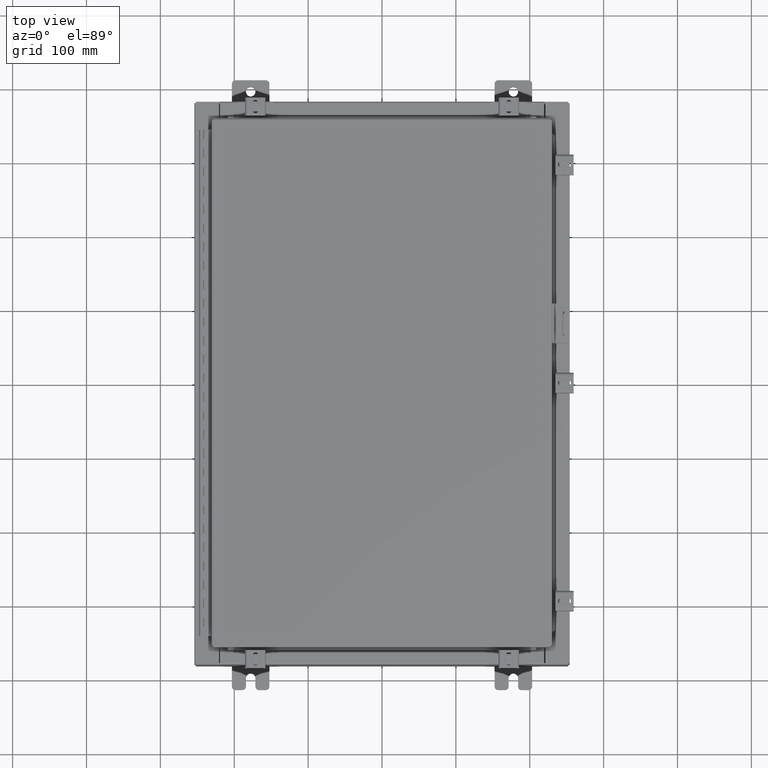
[diagram: clean part render]
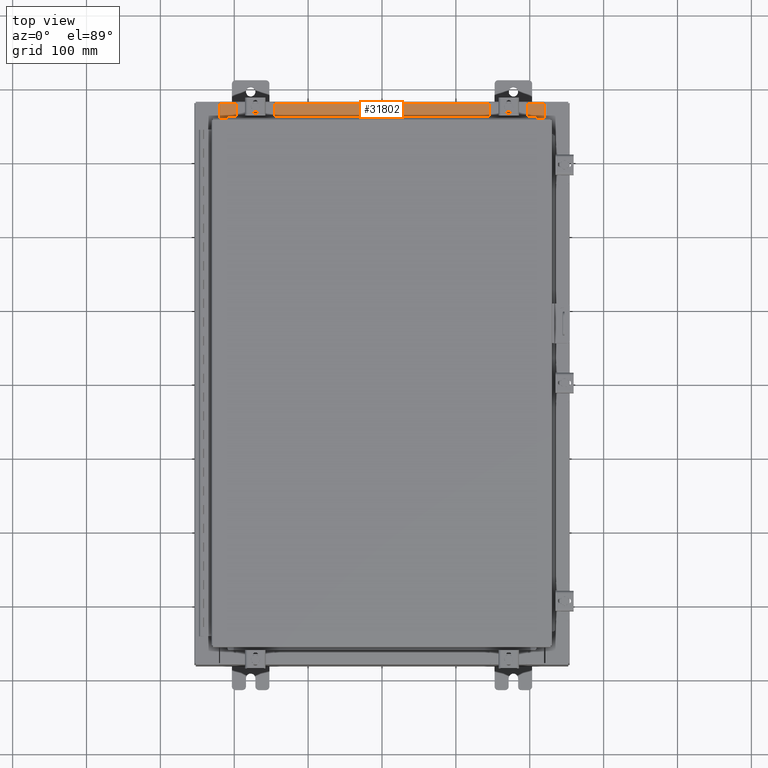
[diagram: same view with one face highlighted and labeled with its STEP entity id]
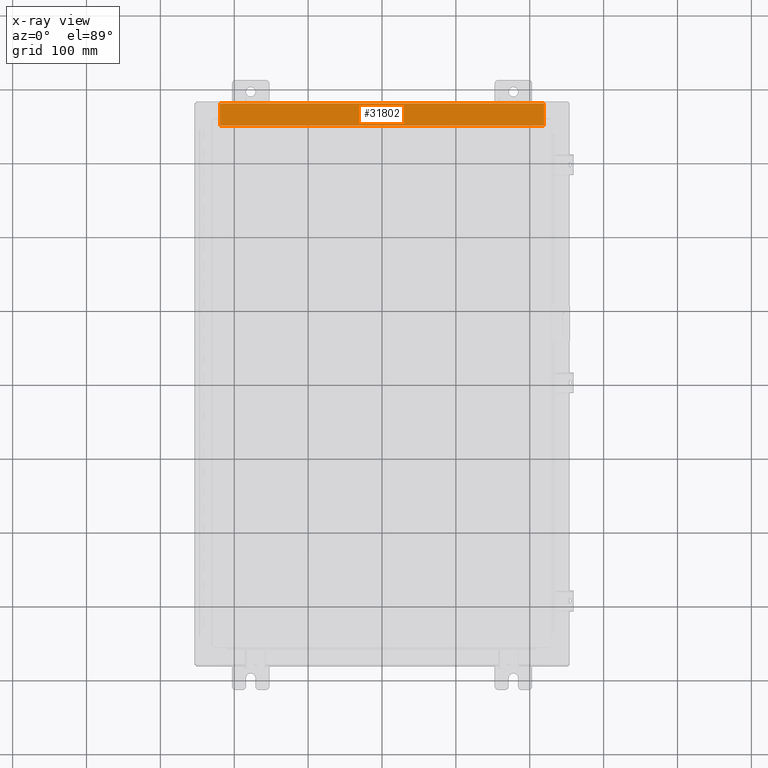
[diagram: x-ray of the same camera — body ghosted, the highlighted face saturated]
A machine part, top view. The second image highlights one B-rep face of the part: STEP entity #31802.
The next image is the same camera in x-ray: the body ghosted, the highlighted face saturated — about 0% of this face is hidden behind the body in this view.
In plain terms, the highlighted planar face has unit normal (0, 0, 1).
Its self-contained STEP definition (entity closure, byte-faithful):
#1083 = CARTESIAN_POINT ( 'NONE',  ( -8.637200000000000000, -0.08770000000000000000, 3.000000000000000900 ) ) ;
#3162 = EDGE_CURVE ( 'NONE', #18866, #7378, #29106, .T. ) ;
#3420 = EDGE_CURVE ( 'NONE', #27951, #16567, #31463, .T. ) ;
#4671 = CARTESIAN_POINT ( 'NONE',  ( 8.637200000000000000, -1.300299999999999800, 3.000000000000005300 ) ) ;
#7168 = ORIENTED_EDGE ( 'NONE', *, *, #19924, .F. ) ;
#7378 = VERTEX_POINT ( 'NONE', #19456 ) ;
#8388 = VECTOR ( 'NONE', #26710, 39.37007874015748100 ) ;
#8397 = ORIENTED_EDGE ( 'NONE', *, *, #8867, .F. ) ;
#8867 = EDGE_CURVE ( 'NONE', #7378, #16567, #28079, .T. ) ;
#11482 = VECTOR ( 'NONE', #11918, 39.37007874015748100 ) ;
#11918 = DIRECTION ( 'NONE',  ( -0.0000000000000000000, -1.000000000000000000, 3.566381192773190000E-015 ) ) ;
#12136 = CARTESIAN_POINT ( 'NONE',  ( -2.773851121247453900E-018, -0.08770000000000000000, 3.000000000000001300 ) ) ;
#13692 = DIRECTION ( 'NONE',  ( -0.0000000000000000000, 1.000000000000000000, -3.566381192773190000E-015 ) ) ;
#14647 = ORIENTED_EDGE ( 'NONE', *, *, #3420, .T. ) ;
#15032 = CARTESIAN_POINT ( 'NONE',  ( 8.637200000000000000, -1.287299999999999900, 3.000000000000005300 ) ) ;
#16043 = LINE ( 'NONE', #4671, #11482 ) ;
#16567 = VERTEX_POINT ( 'NONE', #1083 ) ;
#17045 = FACE_OUTER_BOUND ( 'NONE', #33449, .T. ) ;
#17317 = CARTESIAN_POINT ( 'NONE',  ( 8.637200000000000000, -1.287299999999999900, 3.000000000000005300 ) ) ;
#18866 = VERTEX_POINT ( 'NONE', #17317 ) ;
#19456 = CARTESIAN_POINT ( 'NONE',  ( -8.637200000000000000, -1.287299999999999200, 3.000000000000005300 ) ) ;
#19924 = EDGE_CURVE ( 'NONE', #27951, #18866, #16043, .T. ) ;
#21377 = VECTOR ( 'NONE', #13692, 39.37007874015748100 ) ;
#22337 = CARTESIAN_POINT ( 'NONE',  ( -8.637200000000000000, -0.07469999999999973900, 3.000000000000000900 ) ) ;
#23009 = ORIENTED_EDGE ( 'NONE', *, *, #3162, .F. ) ;
#23586 = DIRECTION ( 'NONE',  ( -1.000000000000000000, 3.162886113166609200E-017, -1.128005754888089100E-031 ) ) ;
#25326 = CARTESIAN_POINT ( 'NONE',  ( 8.637200000000000000, -0.08769999999999965300, 3.000000000000000900 ) ) ;
#26710 = DIRECTION ( 'NONE',  ( -1.000000000000000000, 0.0000000000000000000, 0.0000000000000000000 ) ) ;
#27711 = CARTESIAN_POINT ( 'NONE',  ( 0.0000000000000000000, 1.069354855923099900E-014, 3.000000000000000900 ) ) ;
#27951 = VERTEX_POINT ( 'NONE', #25326 ) ;
#28079 = LINE ( 'NONE', #22337, #21377 ) ;
#29106 = LINE ( 'NONE', #15032, #8388 ) ;
#31463 = LINE ( 'NONE', #12136, #34409 ) ;
#31802 = ADVANCED_FACE ( 'NONE', ( #17045 ), #34623, .T. ) ;
#32577 = AXIS2_PLACEMENT_3D ( 'NONE', #27711, #37484, #36287 ) ;
#33449 = EDGE_LOOP ( 'NONE', ( #8397, #23009, #7168, #14647 ) ) ;
#34409 = VECTOR ( 'NONE', #23586, 39.37007874015748100 ) ;
#34623 = PLANE ( 'NONE',  #32577 ) ;
#36287 = DIRECTION ( 'NONE',  ( 0.0000000000000000000, -1.000000000000000000, 3.566381192773190000E-015 ) ) ;
#37484 = DIRECTION ( 'NONE',  ( 0.0000000000000000000, 3.566381192773190000E-015, 1.000000000000000000 ) ) ;